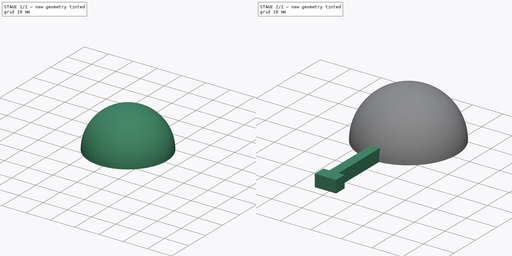
[diagram: build sequence overview — one tinted view per stage of 2, left to right]
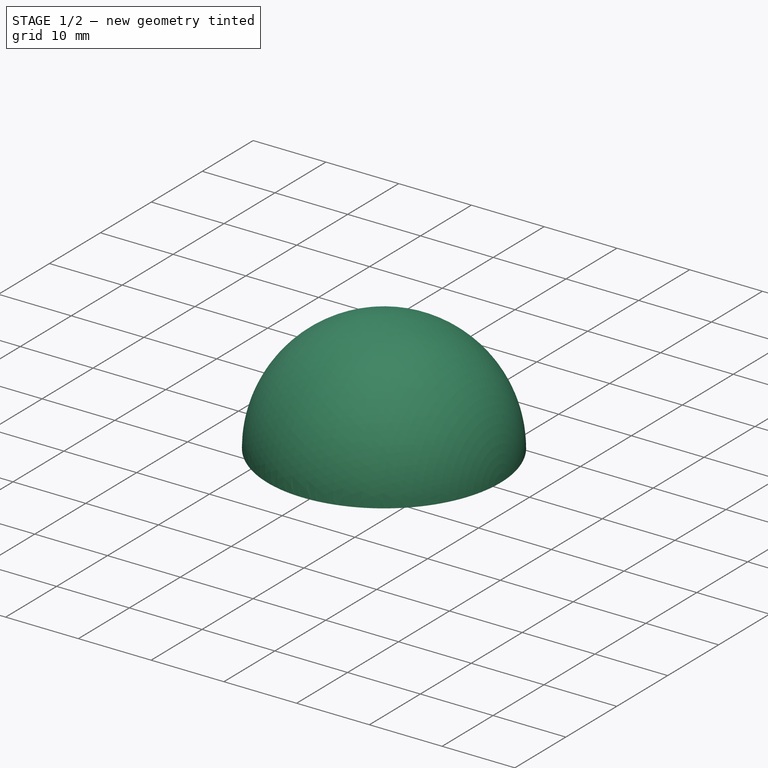
[diagram: stage 1 of 2 — iso view after this stage's code; geometry added in this stage tinted green]
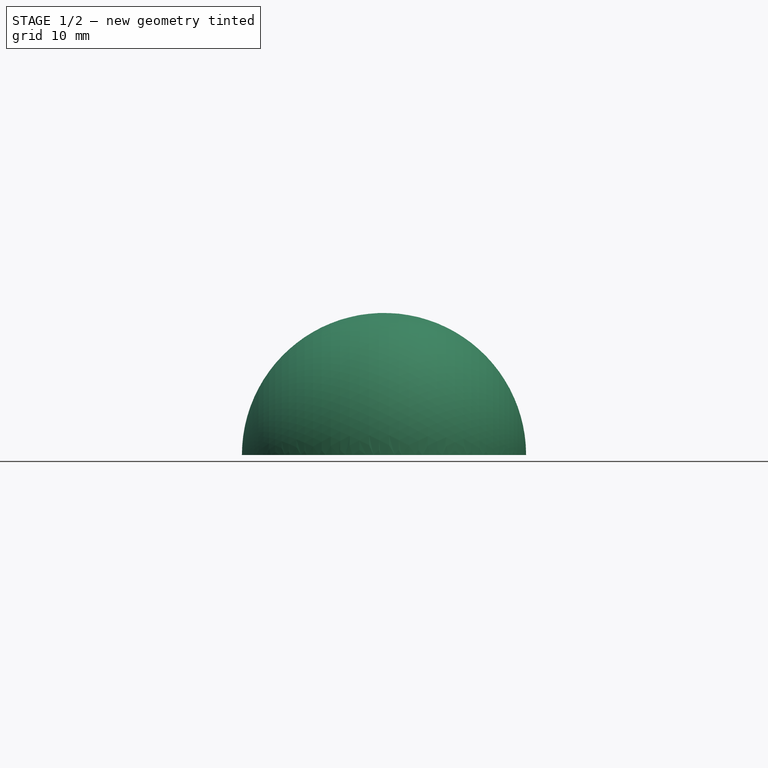
[diagram: stage 1 of 2 — front view after this stage's code; geometry added in this stage tinted green]
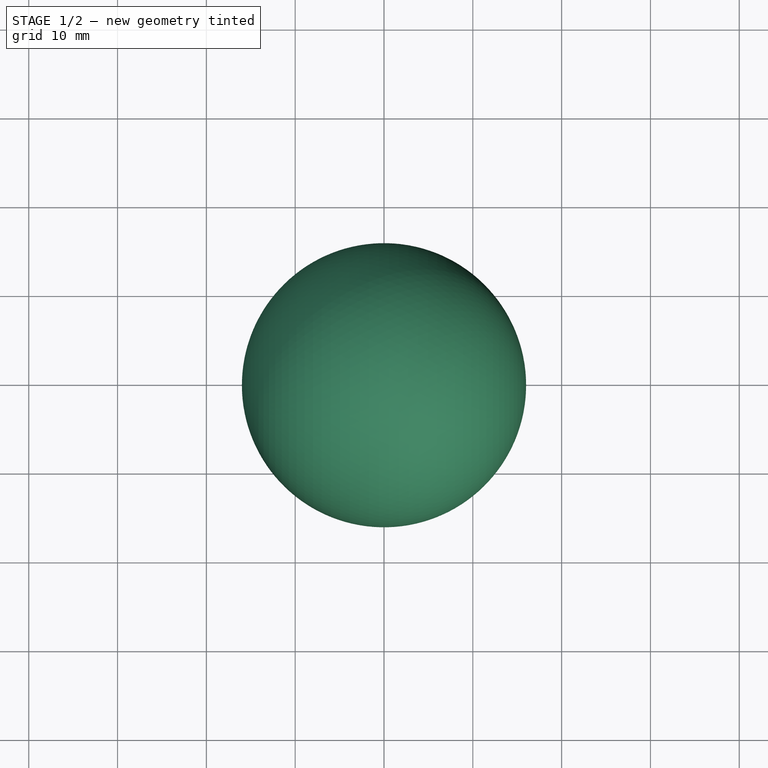
[diagram: stage 1 of 2 — top view after this stage's code; geometry added in this stage tinted green]
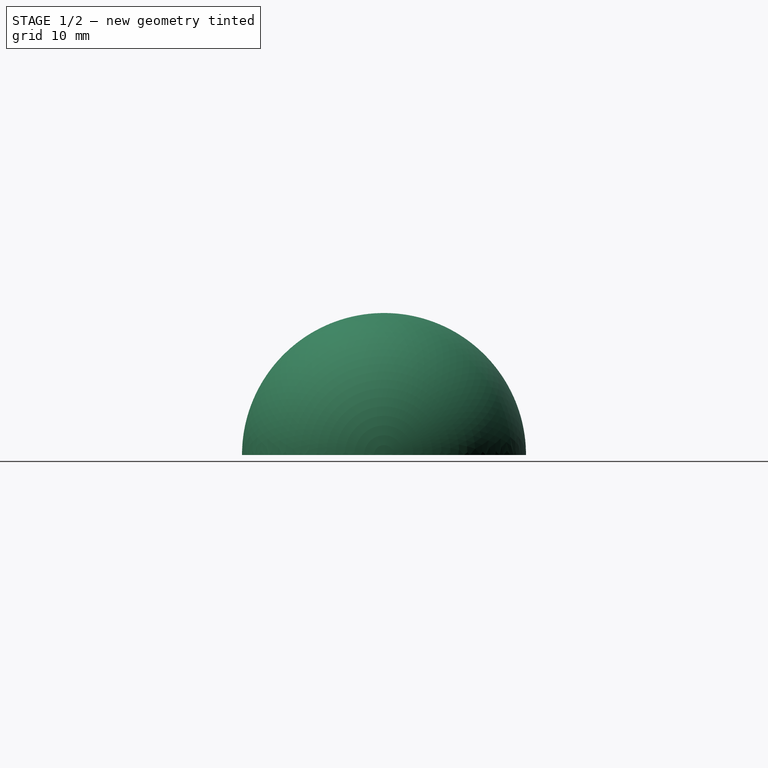
[diagram: stage 1 of 2 — right view after this stage's code; geometry added in this stage tinted green]
FCSTD DOCUMENT  (FreeCAD 0.16RUnknown)
Label: cup
License: All rights reserved
LicenseURL: http://en.wikipedia.org/wiki/All_rights_reserved
objects: Sketcher::SketchObject×2, PartDesign::Revolution×1, PartDesign::Pad×1
note: 6 computed .brp shape members not serialized (recipe doc carries the construction recipe); baked Part::Feature solids carry a one-line shape summary decoded from their .brp

FEATURE [Sketcher::SketchObject] Sketch
  sketch-geometry (4):
    g0: ArcOfCircle CenterX=0 CenterY=0 CenterZ=0 NormalX=0 NormalY=0 NormalZ=1 Radius=16 StartAngle=0 EndAngle=3.14159
    g1: ArcOfCircle CenterX=0 CenterY=0 CenterZ=0 NormalX=0 NormalY=0 NormalZ=1 Radius=15 StartAngle=0 EndAngle=3.14159
    g2: LineSegment StartX=-16 StartY=0 StartZ=0 EndX=-15 EndY=0 EndZ=0
    g3: LineSegment StartX=15 StartY=0 StartZ=0 EndX=16 EndY=0 EndZ=0
  constraints (12):
    c: Coincident(g0,g-1)
    c: PointOnObject(g0,g-1)
    c: PointOnObject(g0,g-1)
    c: PointOnObject(g1,g-1)
    c: PointOnObject(g1,g-1)
    c: Coincident(g1,g-1)
    c: Radius(g0) = 16
    c: DistanceX(g0,g1) = -1
    c: Coincident(g2,g0)
    c: Coincident(g2,g1)
    c: Coincident(g3,g1)
    c: Coincident(g3,g0)
FEATURE [PartDesign::Revolution] Revolution
  Angle = 180
  Axis = (1,0,0)
  Base = (0,0,0)
  ReferenceAxis = -> Sketch [H_Axis]
  Sketch = -> Sketch
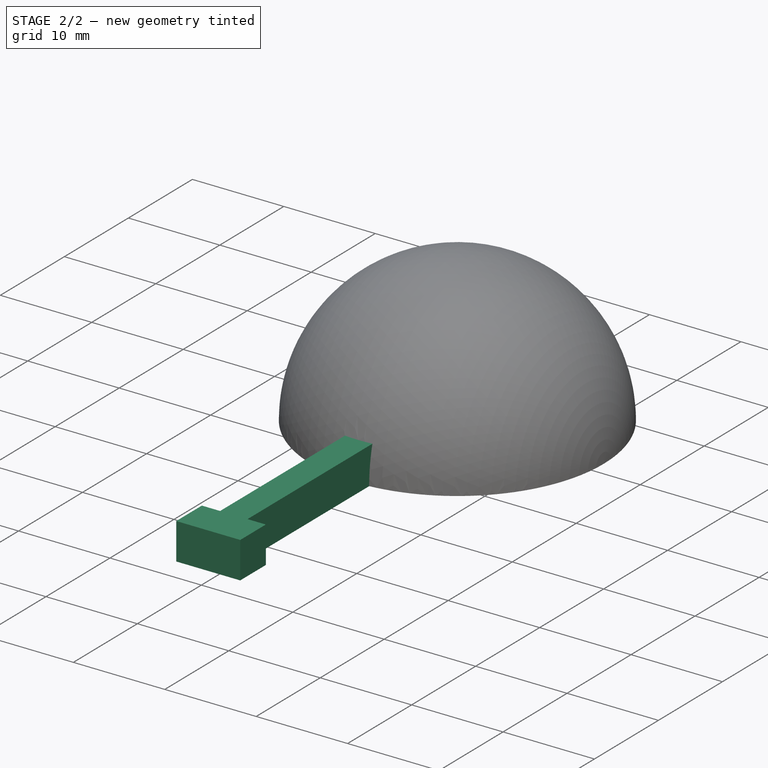
[diagram: stage 2 of 2 — iso view after this stage's code; geometry added in this stage tinted green]
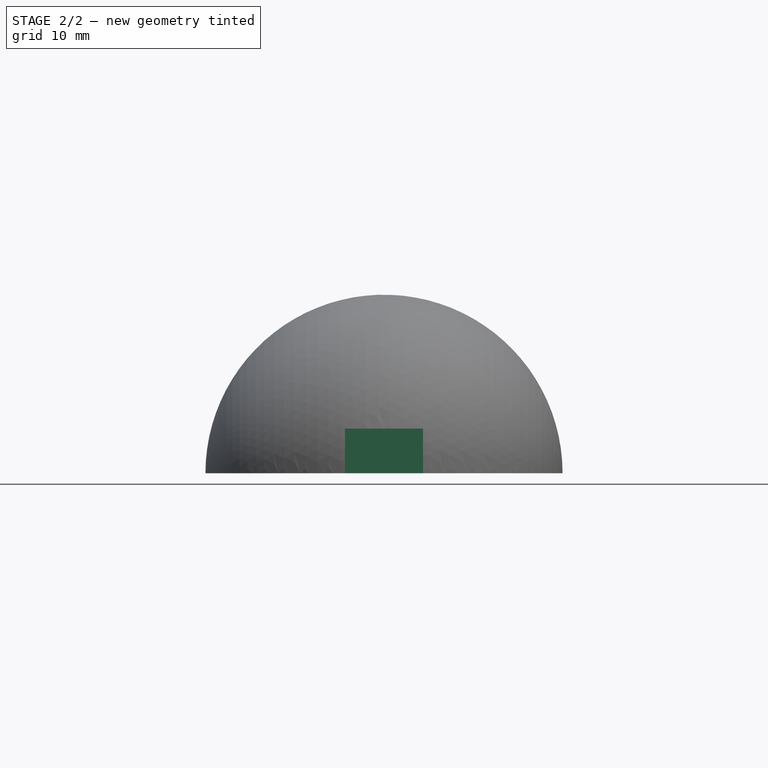
[diagram: stage 2 of 2 — front view after this stage's code; geometry added in this stage tinted green]
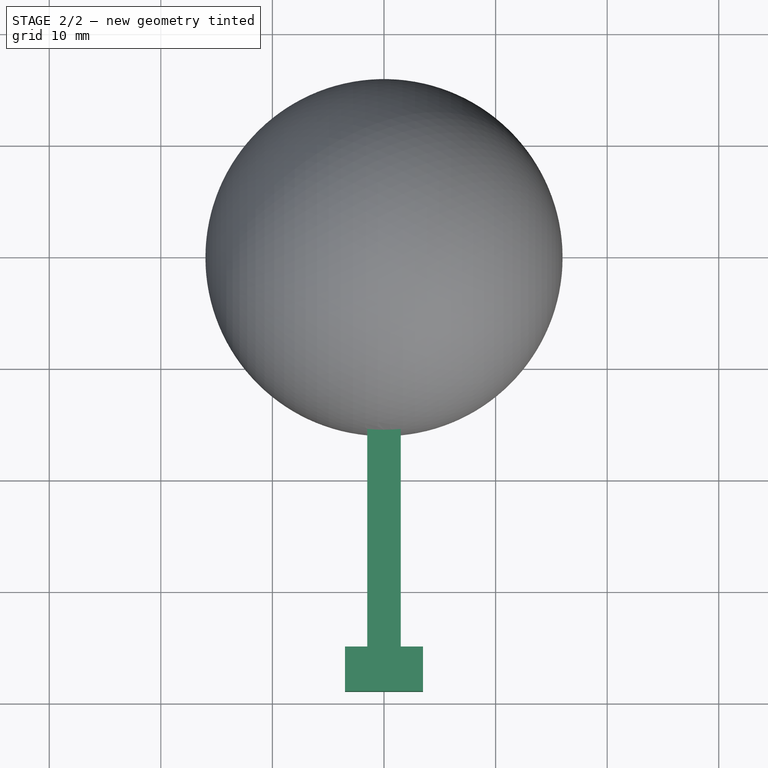
[diagram: stage 2 of 2 — top view after this stage's code; geometry added in this stage tinted green]
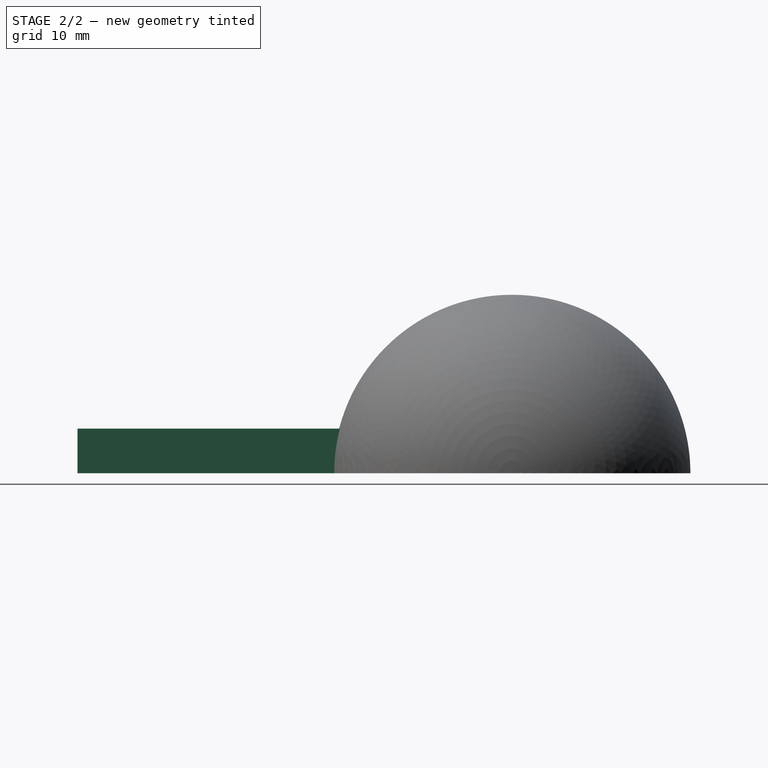
[diagram: stage 2 of 2 — right view after this stage's code; geometry added in this stage tinted green]
FEATURE [Sketcher::SketchObject] Sketch001
  ExternalGeometry = -> [Revolution]
  Placement = pos=(0,0,0) rot=(1,0,0;3.14159rad)
  Support = -> Revolution [Face3]
  sketch-geometry (8):
    g0: LineSegment StartX=-1.5 StartY=14.9248 StartZ=0 EndX=-1.5 EndY=34.9248 EndZ=0
    g1: LineSegment StartX=1.5 StartY=34.9248 StartZ=0 EndX=1.5 EndY=14.9248 EndZ=0
    g2: LineSegment StartX=-1.5 StartY=14.9248 StartZ=0 EndX=1.5 EndY=14.9248 EndZ=0
    g3: LineSegment StartX=1.5 StartY=34.9248 StartZ=0 EndX=3.5 EndY=34.9248 EndZ=0
    g4: LineSegment StartX=3.5 StartY=34.9248 StartZ=0 EndX=3.5 EndY=38.9248 EndZ=0
    g5: LineSegment StartX=-1.5 StartY=34.9248 StartZ=0 EndX=-3.5 EndY=34.9248 EndZ=0
    g6: LineSegment StartX=-3.5 StartY=34.9248 StartZ=0 EndX=-3.5 EndY=38.9248 EndZ=0
    g7: LineSegment StartX=-3.5 StartY=38.9248 StartZ=0 EndX=3.5 EndY=38.9248 EndZ=0
  constraints (24):
    c: Vertical(g0)
    c: Vertical(g1)
    c: DistanceY(g1) = -20
    c: Coincident(g2,g0)
    c: Coincident(g2,g1)
    c: PointOnObject(g1,g-3)
    c: PointOnObject(g0,g-3)
    c: Coincident(g1,g3)
    c: Horizontal(g3)
    c: Coincident(g3,g4)
    c: Vertical(g4)
    c: DistanceY(g4) = 4
    c: Symmetric(g0,g1,g-2)
    c: DistanceX(g1,g0) = -3
    c: Equal(g0,g1)
    c: Coincident(g0,g5)
    c: Horizontal(g5)
    c: Coincident(g5,g6)
    c: Coincident(g6,g7)
    c: Coincident(g7,g4)
    c: Horizontal(g7)
    c: Vertical(g6)
    c: Equal(g3,g5)
    c: DistanceX(g7) = 7
FEATURE [PartDesign::Pad] Pad
  Length = 4
  Length2 = 100
  Reversed = true
  Sketch = -> Sketch001
  Type = 0
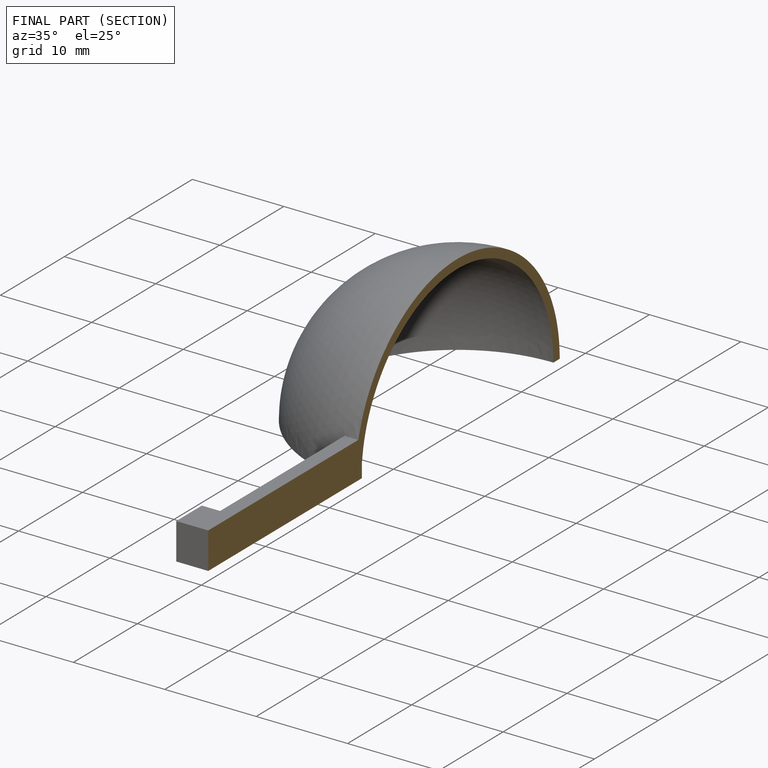
[diagram: finished part — half-section view (interior)]
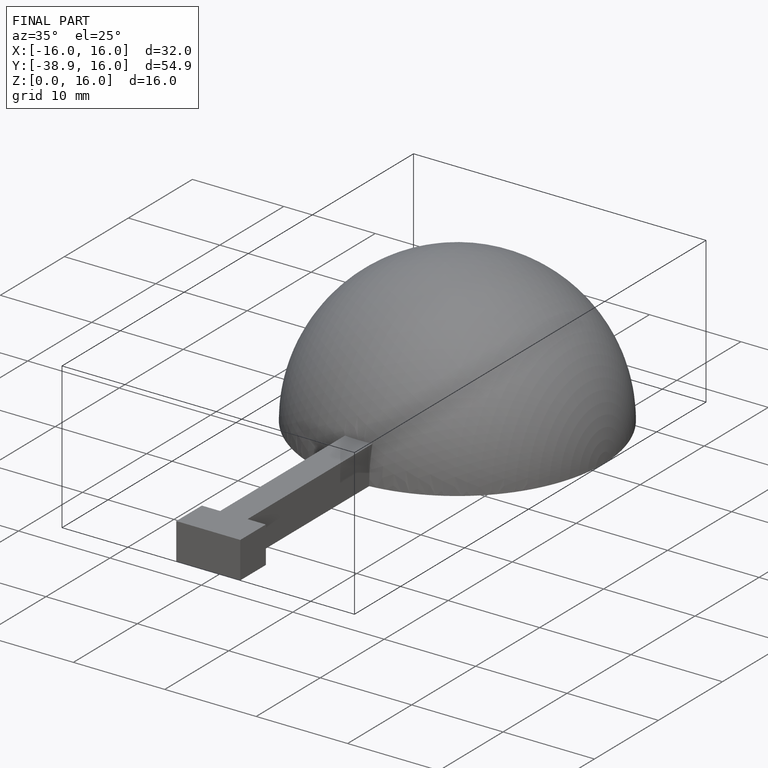
[diagram: finished part — iso view with bounding-box wireframe]
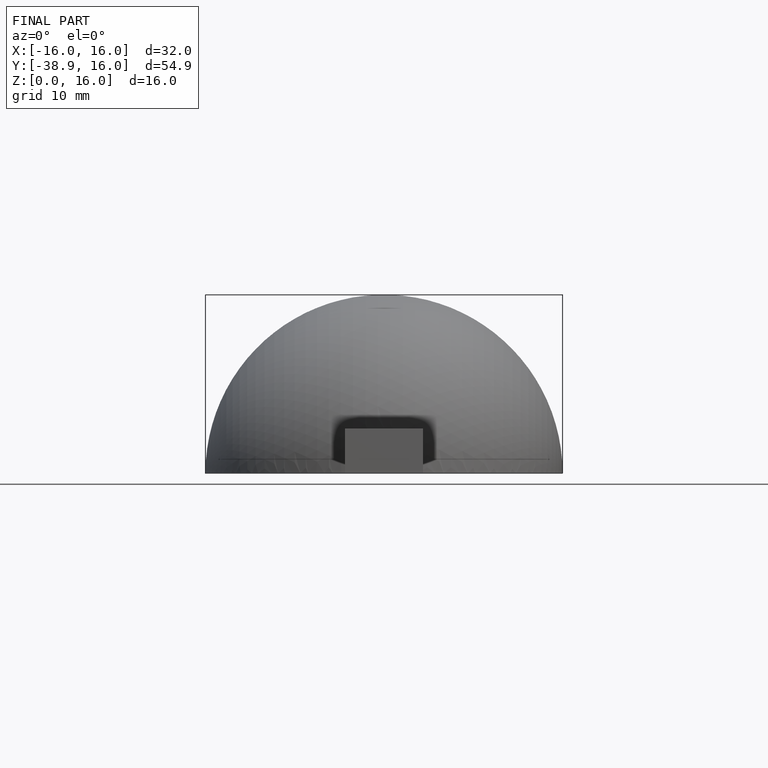
[diagram: finished part — front view with bounding-box wireframe]
